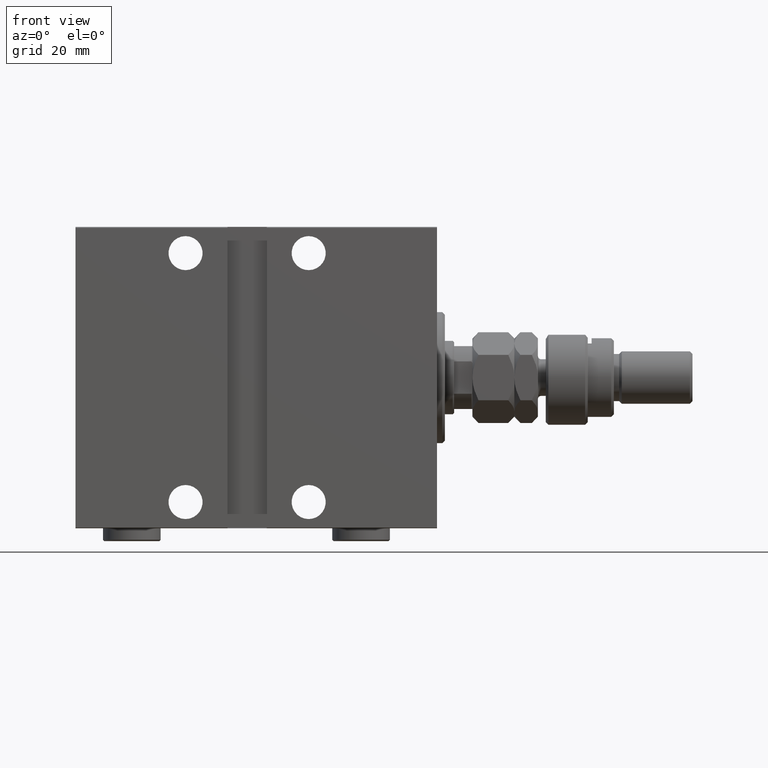
[diagram: clean part render]
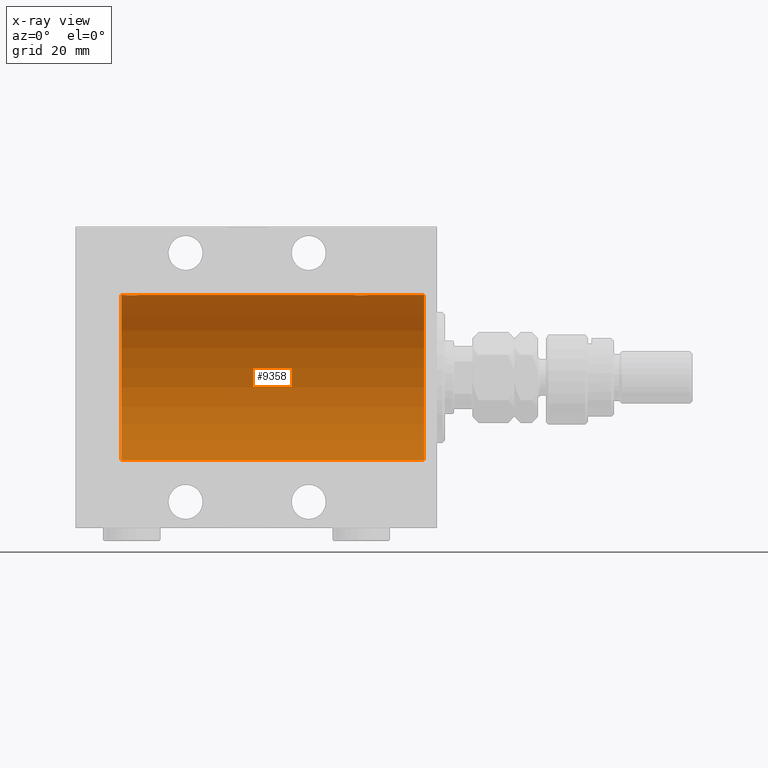
[diagram: x-ray — body ghosted, one internal face saturated and labeled with its STEP entity id]
A machine part, front view, then the same camera in x-ray: the body is ghosted and one INTERNAL B-rep face — a face not visible from any outside direction — is saturated and labeled: STEP entity #9358.
In plain terms, the highlighted cylindrical surface (partial cylindrical patch) has radius 31.5 mm, axis along (1, 0, -0).
Its self-contained STEP definition (entity closure, byte-faithful):
#34 = CARTESIAN_POINT ( 'NONE',  ( 5.000000000000004441, 0.000000000000000000, 31.50000000000000000 ) ) ;
#197 = CARTESIAN_POINT ( 'NONE',  ( 26.39582218725271190, -1.502389880413000922, 31.46458023642405166 ) ) ;
#1338 = EDGE_CURVE ( 'NONE', #8609, #28477, #24977, .T. ) ;
#2814 = CARTESIAN_POINT ( 'NONE',  ( 118.7582450190326995, -1.984587626072078281, 31.43772577203671048 ) ) ;
#3049 = CARTESIAN_POINT ( 'NONE',  ( 114.2390453754387210, -1.981494824113336550, 31.43792153503157394 ) ) ;
#3055 = CARTESIAN_POINT ( 'NONE',  ( 28.22118087357679528, -2.903733559410688336, 31.36590199989304395 ) ) ;
#3516 = CARTESIAN_POINT ( 'NONE',  ( 115.7211808735767846, -2.903733559410701215, 31.36590199989303684 ) ) ;
#3762 = CARTESIAN_POINT ( 'NONE',  ( 26.30285761163299441, -1.328004386210307919, 31.47251238182140298 ) ) ;
#4334 = ORIENTED_EDGE ( 'NONE', *, *, #18471, .F. ) ;
#4599 = CARTESIAN_POINT ( 'NONE',  ( 120.5000000000000000, 0.000000000000000000, 0.000000000000000000 ) ) ;
#4876 = DIRECTION ( 'NONE',  ( -1.000000000000000000, 0.000000000000000000, 0.000000000000000000 ) ) ;
#5031 = CARTESIAN_POINT ( 'NONE',  ( 113.8958221872526906, -1.502389880413007806, 31.46458023642405166 ) ) ;
#5105 = DIRECTION ( 'NONE',  ( 0.000000000000000000, 0.000000000000000000, 1.000000000000000000 ) ) ;
#5738 = CARTESIAN_POINT ( 'NONE',  ( 116.6958229443943935, -3.000152387858501690, 31.35680286115500337 ) ) ;
#6814 = CARTESIAN_POINT ( 'NONE',  ( 120.5000000000000000, 0.000000000000000000, 31.50000000000000000 ) ) ;
#6843 = DIRECTION ( 'NONE',  ( -1.000000000000000000, -0.000000000000000000, -0.000000000000000000 ) ) ;
#6880 = CARTESIAN_POINT ( 'NONE',  ( 29.77469094434372465, -2.904836261170110845, 31.36579955910872997 ) ) ;
#7078 = LINE ( 'NONE', #46716, #22763 ) ;
#7107 = CARTESIAN_POINT ( 'NONE',  ( 119.5000000000000284, 3.986776180743416568E-16, 31.50000000000000000 ) ) ;
#7352 = CARTESIAN_POINT ( 'NONE',  ( 29.39114547339941907, -2.980809450819707163, 31.35867074198615967 ) ) ;
#7372 = EDGE_CURVE ( 'NONE', #40329, #18737, #26476, .T. ) ;
#7392 = VERTEX_POINT ( 'NONE', #27783 ) ;
#7419 = AXIS2_PLACEMENT_3D ( 'NONE', #37820, #4876, #5105 ) ;
#7595 = CARTESIAN_POINT ( 'NONE',  ( 27.49543714993000521, -2.602826974226399859, 31.39247100434484850 ) ) ;
#7860 = ORIENTED_EDGE ( 'NONE', *, *, #7372, .T. ) ;
#7900 = CARTESIAN_POINT ( 'NONE',  ( 120.5000000000000000, 0.000000000000000000, 0.000000000000000000 ) ) ;
#8399 = CARTESIAN_POINT ( 'NONE',  ( 113.6533953625750257, -0.9669616078782038437, 31.48567319468627446 ) ) ;
#8609 = VERTEX_POINT ( 'NONE', #25450 ) ;
#9255 = ORIENTED_EDGE ( 'NONE', *, *, #16840, .T. ) ;
#9358 = ADVANCED_FACE ( 'NONE', ( #11712 ), #23169, .F. ) ;
#10228 = CARTESIAN_POINT ( 'NONE',  ( 117.2746909443437602, -2.904836261170119283, 31.36579955910872997 ) ) ;
#10877 = DIRECTION ( 'NONE',  ( -1.000000000000000000, -0.000000000000000000, -0.000000000000000000 ) ) ;
#10945 = CARTESIAN_POINT ( 'NONE',  ( 26.09580549261944071, -0.7775502215293879082, 31.49099686045559565 ) ) ;
#11429 = LINE ( 'NONE', #39834, #35911 ) ;
#11712 = FACE_OUTER_BOUND ( 'NONE', #25365, .T. ) ;
#11756 = CARTESIAN_POINT ( 'NONE',  ( 113.5000000000000142, -2.116947682205846230E-23, 31.50000000000000000 ) ) ;
#12096 = CARTESIAN_POINT ( 'NONE',  ( 120.5000000000000000, 0.000000000000000000, 31.50000000000000000 ) ) ;
#13809 = CARTESIAN_POINT ( 'NONE',  ( 119.1019214043915895, -1.506272792558331464, 31.46439306106695710 ) ) ;
#13815 = CARTESIAN_POINT ( 'NONE',  ( 26.00000000000000355, -2.117263226567934635E-23, 31.50000000000000000 ) ) ;
#14044 = CARTESIAN_POINT ( 'NONE',  ( 116.8911454733994333, -2.980809450819716044, 31.35867074198615256 ) ) ;
#14050 = CARTESIAN_POINT ( 'NONE',  ( 31.69529642359011135, -1.331741824817660236, 31.47235367475394341 ) ) ;
#14283 = CARTESIAN_POINT ( 'NONE',  ( 30.32865414687508832, -2.696917666262911961, 31.38442820068732075 ) ) ;
#14519 = CARTESIAN_POINT ( 'NONE',  ( 26.00000000000000355, -0.1958045626907478631, 31.50000000000000000 ) ) ;
#14759 = CARTESIAN_POINT ( 'NONE',  ( 27.66760041900836242, -2.695056442718537060, 31.38458855656185875 ) ) ;
#15065 = DIRECTION ( 'NONE',  ( 0.000000000000000000, 0.000000000000000000, 1.000000000000000000 ) ) ;
#15798 = CARTESIAN_POINT ( 'NONE',  ( 113.5189849060848672, -0.3904857149112057613, 31.49817436802766935 ) ) ;
#16056 = AXIS2_PLACEMENT_3D ( 'NONE', #4599, #41354, #26581 ) ;
#16840 = EDGE_CURVE ( 'NONE', #8609, #20068, #40495, .T. ) ;
#17623 = CARTESIAN_POINT ( 'NONE',  ( 115.1676004190084086, -2.695056442718549050, 31.38458855656186941 ) ) ;
#17858 = CARTESIAN_POINT ( 'NONE',  ( 31.25824501903267461, -1.984587626072075617, 31.43772577203673180 ) ) ;
#18356 = DIRECTION ( 'NONE',  ( -1.000000000000000000, -0.000000000000000000, -0.000000000000000000 ) ) ;
#18471 = EDGE_CURVE ( 'NONE', #7392, #26032, #23698, .T. ) ;
#18737 = VERTEX_POINT ( 'NONE', #34 ) ;
#19582 = AXIS2_PLACEMENT_3D ( 'NONE', #7900, #45109, #15065 ) ;
#20068 = VERTEX_POINT ( 'NONE', #27247 ) ;
#20315 = CARTESIAN_POINT ( 'NONE',  ( 116.1046588899990724, -2.980257240990072276, 31.35872356503798031 ) ) ;
#20319 = EDGE_CURVE ( 'NONE', #28604, #28477, #21460, .T. ) ;
#20779 = EDGE_CURVE ( 'NONE', #7392, #40329, #27314, .T. ) ;
#21455 = CARTESIAN_POINT ( 'NONE',  ( 30.98143462873041543, -2.261012035264784004, 31.41905495618427935 ) ) ;
#21460 = B_SPLINE_CURVE_WITH_KNOTS ( 'NONE', 3,
 ( #13815, #14519, #47219, #10945, #43878, #3762, #197, #25752, #24807, #40298, #29100, #7595, #14759, #22169, #3055, #36729, #31979, #36250, #7352, #6880, #39352, #14283, #29335, #46981, #21455, #17858, #32925, #46518, #14050, #43648, #43412, #28391 ),
 .UNSPECIFIED., .F., .F.,
 ( 4, 2, 2, 2, 2, 2, 2, 2, 2, 2, 2, 2, 2, 2, 2, 4 ),
 ( 0.009384682587134636142, 0.009971088165454035368, 0.01055749374377343633, 0.01114389932209283729, 0.01173030490041223652, 0.01231671047873163748, 0.01290311605705103844, 0.01348952163537044113, 0.01407592721368984209, 0.01466233279200924305, 0.01524873837032864402, 0.01583514394864804498, 0.01642154952696744594, 0.01700795510528684690, 0.01759436068360624786, 0.01876717184024504284 ),
 .UNSPECIFIED. ) ;
#21685 = CARTESIAN_POINT ( 'NONE',  ( 118.8824687226663457, -1.833765390051049549, 31.44700610425690002 ) ) ;
#22169 = CARTESIAN_POINT ( 'NONE',  ( 28.03055544341478367, -2.845838211243338023, 31.37127560316188024 ) ) ;
#22763 = VECTOR ( 'NONE', #6843, 1000.000000000000000 ) ;
#23169 = CYLINDRICAL_SURFACE ( 'NONE', #19582, 31.50000000000000000 ) ;
#23698 = CIRCLE ( 'NONE', #16056, 31.50000000000000000 ) ;
#24323 = CARTESIAN_POINT ( 'NONE',  ( 26.00000000000000355, -2.117263226567934635E-23, 31.50000000000000000 ) ) ;
#24807 = CARTESIAN_POINT ( 'NONE',  ( 26.73904537543871029, -1.981494824113332998, 31.43792153503156683 ) ) ;
#24977 = LINE ( 'NONE', #6814, #27040 ) ;
#25275 = CARTESIAN_POINT ( 'NONE',  ( 114.9954371499299981, -2.602826974226411849, 31.39247100434485560 ) ) ;
#25365 = EDGE_LOOP ( 'NONE', ( #4334, #27636, #7860, #30768, #43218, #45302, #9255, #43146 ) ) ;
#25450 = CARTESIAN_POINT ( 'NONE',  ( 113.5000000000000142, -2.116947682205846230E-23, 31.50000000000000000 ) ) ;
#25752 = CARTESIAN_POINT ( 'NONE',  ( 26.61498557723073333, -1.830470878313879668, 31.44719957596828763 ) ) ;
#26032 = VERTEX_POINT ( 'NONE', #12096 ) ;
#26476 = CIRCLE ( 'NONE', #7419, 31.50000000000000000 ) ;
#26581 = DIRECTION ( 'NONE',  ( 0.000000000000000000, 0.000000000000000000, 1.000000000000000000 ) ) ;
#27040 = VECTOR ( 'NONE', #10877, 1000.000000000000000 ) ;
#27247 = CARTESIAN_POINT ( 'NONE',  ( 119.5000000000000284, 3.986776180743416568E-16, 31.50000000000000000 ) ) ;
#27314 = LINE ( 'NONE', #31383, #42910 ) ;
#27482 = CARTESIAN_POINT ( 'NONE',  ( 119.1952964235901646, -1.331741824817668673, 31.47235367475394341 ) ) ;
#27636 = ORIENTED_EDGE ( 'NONE', *, *, #20779, .T. ) ;
#27783 = CARTESIAN_POINT ( 'NONE',  ( 120.5000000000000000, 3.857637417314162689E-15, -31.50000000000000000 ) ) ;
#28385 = CARTESIAN_POINT ( 'NONE',  ( 114.1149855772307689, -1.830470878313888772, 31.44719957596829474 ) ) ;
#28391 = CARTESIAN_POINT ( 'NONE',  ( 32.00000000000000000, -2.212280765433387153E-16, 31.50000000000000000 ) ) ;
#28477 = VERTEX_POINT ( 'NONE', #33206 ) ;
#28604 = VERTEX_POINT ( 'NONE', #24323 ) ;
#29100 = CARTESIAN_POINT ( 'NONE',  ( 27.16956308512997964, -2.384935707362441537, 31.40977595730572958 ) ) ;
#29335 = CARTESIAN_POINT ( 'NONE',  ( 30.50098156296147422, -2.604888532024794312, 31.39229907792057972 ) ) ;
#30768 = ORIENTED_EDGE ( 'NONE', *, *, #43963, .F. ) ;
#31078 = CARTESIAN_POINT ( 'NONE',  ( 118.4814346287304687, -2.261012035264788445, 31.41905495618427935 ) ) ;
#31178 = CARTESIAN_POINT ( 'NONE',  ( 5.000000000000004441, 3.857637417314162689E-15, -31.50000000000000000 ) ) ;
#31383 = CARTESIAN_POINT ( 'NONE',  ( 120.5000000000000000, 3.857637417314162689E-15, -31.50000000000000000 ) ) ;
#31979 = CARTESIAN_POINT ( 'NONE',  ( 28.79953541025905395, -2.999845816735302151, 31.35683219171744796 ) ) ;
#32214 = CARTESIAN_POINT ( 'NONE',  ( 117.8286541468751238, -2.696917666262918623, 31.38442820068732075 ) ) ;
#32925 = CARTESIAN_POINT ( 'NONE',  ( 31.38246872266632082, -1.833765390051044220, 31.44700610425690712 ) ) ;
#33206 = CARTESIAN_POINT ( 'NONE',  ( 32.00000000000000000, -2.212280765433387153E-16, 31.50000000000000000 ) ) ;
#34252 = DIRECTION ( 'NONE',  ( -1.000000000000000000, -0.000000000000000000, -0.000000000000000000 ) ) ;
#34891 = CARTESIAN_POINT ( 'NONE',  ( 118.3270422537027287, -2.387531469909783599, 31.40957782495775419 ) ) ;
#35911 = VECTOR ( 'NONE', #18356, 1000.000000000000000 ) ;
#36012 = CARTESIAN_POINT ( 'NONE',  ( 118.0009815629614849, -2.604888532024803194, 31.39229907792057972 ) ) ;
#36250 = CARTESIAN_POINT ( 'NONE',  ( 29.19582294439440062, -3.000152387858491476, 31.35680286115500337 ) ) ;
#36729 = CARTESIAN_POINT ( 'NONE',  ( 28.60465888999905815, -2.980257240990060286, 31.35872356503798031 ) ) ;
#37521 = CARTESIAN_POINT ( 'NONE',  ( 113.8028576116330299, -1.328004386210312138, 31.47251238182140298 ) ) ;
#37750 = CARTESIAN_POINT ( 'NONE',  ( 113.5958054926194336, -0.7775502215293890185, 31.49099686045558144 ) ) ;
#37771 = EDGE_CURVE ( 'NONE', #26032, #20068, #7078, .T. ) ;
#37820 = CARTESIAN_POINT ( 'NONE',  ( 5.000000000000004441, 0.000000000000000000, 0.000000000000000000 ) ) ;
#38222 = CARTESIAN_POINT ( 'NONE',  ( 119.4202066295004840, -0.7905881588836197738, 31.49214662150070509 ) ) ;
#38451 = CARTESIAN_POINT ( 'NONE',  ( 116.2995354102590682, -2.999845816735311921, 31.35683219171744796 ) ) ;
#39344 = CARTESIAN_POINT ( 'NONE',  ( 119.5000000000000426, -0.3965830985361756822, 31.50000000000000711 ) ) ;
#39352 = CARTESIAN_POINT ( 'NONE',  ( 29.96515729810639783, -2.847307171789040581, 31.37114183851420890 ) ) ;
#39815 = CARTESIAN_POINT ( 'NONE',  ( 115.5305554434147695, -2.845838211243347793, 31.37127560316186603 ) ) ;
#39834 = CARTESIAN_POINT ( 'NONE',  ( 120.5000000000000000, 0.000000000000000000, 31.50000000000000000 ) ) ;
#40298 = CARTESIAN_POINT ( 'NONE',  ( 27.01539640075336379, -2.258226318633789642, 31.41925597582827123 ) ) ;
#40329 = VERTEX_POINT ( 'NONE', #31178 ) ;
#40495 = B_SPLINE_CURVE_WITH_KNOTS ( 'NONE', 3,
 ( #11756, #41100, #15798, #37750, #8399, #37521, #5031, #28385, #3049, #42937, #41797, #25275, #17623, #39815, #3516, #20315, #38451, #5738, #14044, #10228, #43165, #32214, #36012, #34891, #31078, #2814, #21685, #13809, #27482, #38222, #39344, #7107 ),
 .UNSPECIFIED., .F., .F.,
 ( 4, 2, 2, 2, 2, 2, 2, 2, 2, 2, 2, 2, 2, 2, 2, 4 ),
 ( 0.009384682587134656959, 0.009971088165454059654, 0.01055749374377346235, 0.01114389932209286505, 0.01173030490041226774, 0.01231671047873167044, 0.01290311605705107487, 0.01348952163537047583, 0.01407592721368988026, 0.01466233279200928122, 0.01524873837032868565, 0.01583514394864808661, 0.01642154952696749104, 0.01700795510528689200, 0.01759436068360629296, 0.01876717184024508447 ),
 .UNSPECIFIED. ) ;
#41100 = CARTESIAN_POINT ( 'NONE',  ( 113.5000000000000284, -0.1958045626907475578, 31.50000000000000000 ) ) ;
#41354 = DIRECTION ( 'NONE',  ( -1.000000000000000000, 0.000000000000000000, 0.000000000000000000 ) ) ;
#41797 = CARTESIAN_POINT ( 'NONE',  ( 114.6695630851300081, -2.384935707362453527, 31.40977595730572958 ) ) ;
#42910 = VECTOR ( 'NONE', #34252, 1000.000000000000000 ) ;
#42937 = CARTESIAN_POINT ( 'NONE',  ( 114.5153964007533745, -2.258226318633794083, 31.41925597582825702 ) ) ;
#43146 = ORIENTED_EDGE ( 'NONE', *, *, #37771, .F. ) ;
#43165 = CARTESIAN_POINT ( 'NONE',  ( 117.4651572981064049, -2.847307171789049018, 31.37114183851420179 ) ) ;
#43218 = ORIENTED_EDGE ( 'NONE', *, *, #20319, .T. ) ;
#43412 = CARTESIAN_POINT ( 'NONE',  ( 32.00000000000000000, -0.3965830985361757932, 31.50000000000000711 ) ) ;
#43648 = CARTESIAN_POINT ( 'NONE',  ( 31.92020662950041654, -0.7905881588836122242, 31.49214662150069088 ) ) ;
#43878 = CARTESIAN_POINT ( 'NONE',  ( 26.15339536257502218, -0.9669616078782009572, 31.48567319468626735 ) ) ;
#43963 = EDGE_CURVE ( 'NONE', #28604, #18737, #11429, .T. ) ;
#45109 = DIRECTION ( 'NONE',  ( -1.000000000000000000, -0.000000000000000000, -0.000000000000000000 ) ) ;
#45302 = ORIENTED_EDGE ( 'NONE', *, *, #1338, .F. ) ;
#46518 = CARTESIAN_POINT ( 'NONE',  ( 31.60192140439154684, -1.506272792558327467, 31.46439306106696421 ) ) ;
#46716 = CARTESIAN_POINT ( 'NONE',  ( 120.5000000000000000, 0.000000000000000000, 31.50000000000000000 ) ) ;
#46981 = CARTESIAN_POINT ( 'NONE',  ( 30.82704225370269668, -2.387531469909775605, 31.40957782495775419 ) ) ;
#47219 = CARTESIAN_POINT ( 'NONE',  ( 26.01898490608483527, -0.3904857149112059278, 31.49817436802766224 ) ) ;